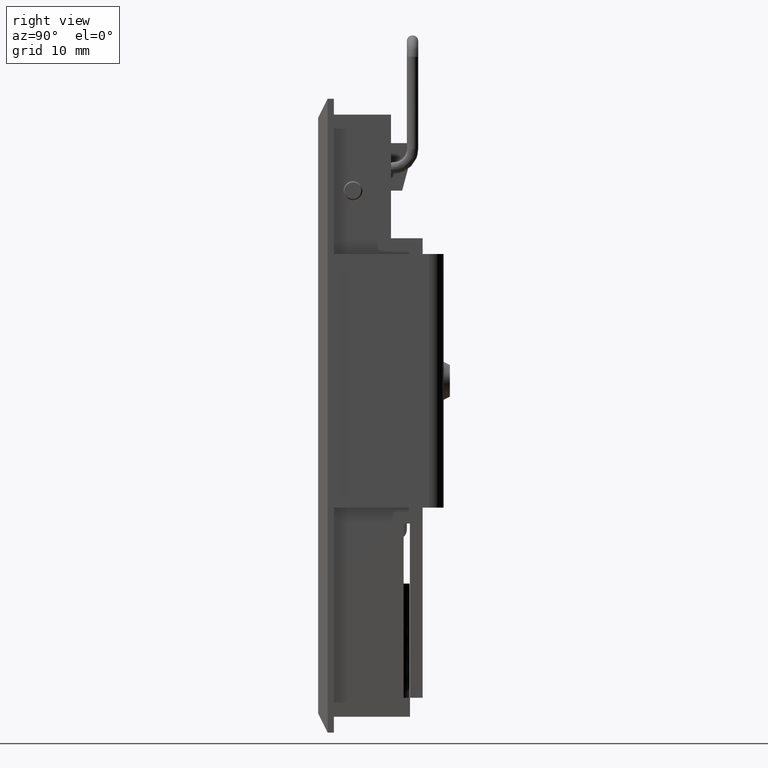
[diagram: clean part render]
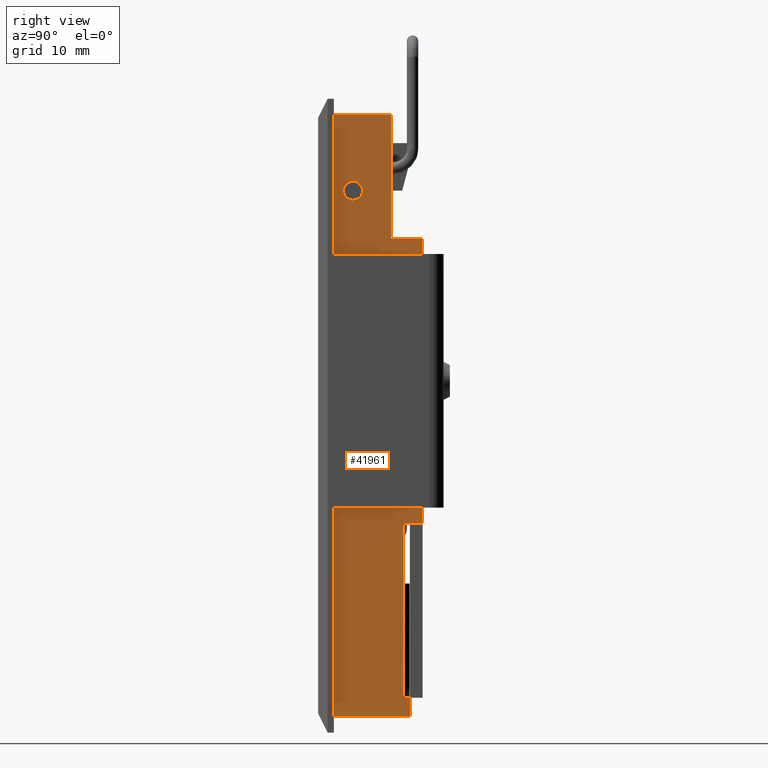
[diagram: same view with one face highlighted and labeled with its STEP entity id]
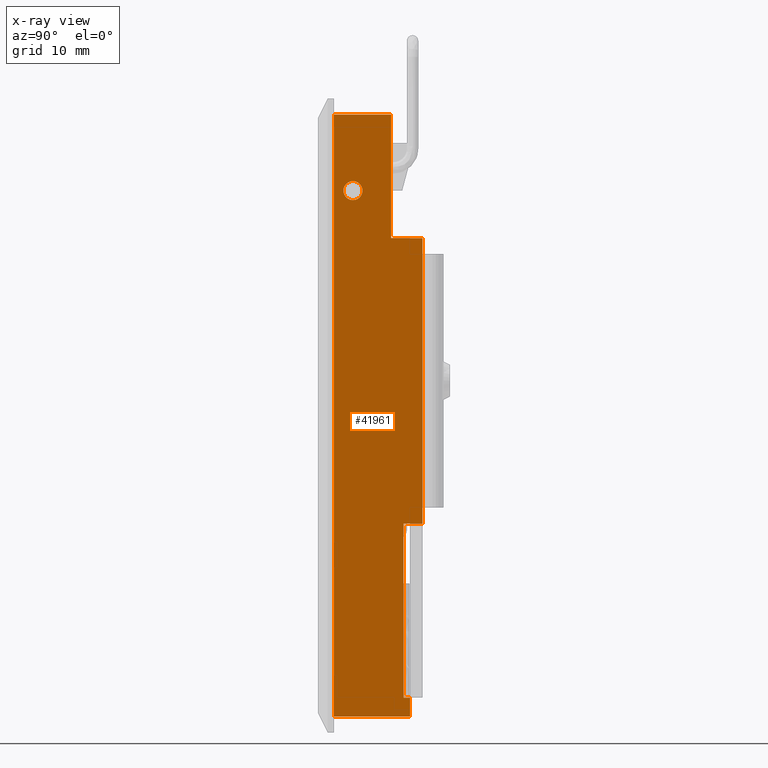
[diagram: x-ray of the same camera — body ghosted, the highlighted face saturated]
A machine part, right view. The second image highlights one B-rep face of the part: STEP entity #41961.
The next image is the same camera in x-ray: the body ghosted, the highlighted face saturated — about 0% of this face is hidden behind the body in this view.
In plain terms, the highlighted face is a freeform B-spline surface patch.
Its self-contained STEP definition (entity closure, byte-faithful):
#37002=CARTESIAN_POINT('',(5.499942884590057,-11.500000000000000,85.486920196032358));
#37003=VERTEX_POINT('',#37002);
#37009=CARTESIAN_POINT('',(4.000000000000085,-11.500000000000000,87.000010000000003));
#37010=VERTEX_POINT('',#37009);
#37011=CARTESIAN_POINT('',(5.499942884590057,-11.500000000000002,85.486920196032358));
#37012=CARTESIAN_POINT('',(5.500000000000084,-11.499999999999996,85.493464973048830));
#37013=CARTESIAN_POINT('',(5.500000000000084,-11.500000000000000,85.500010000000003));
#37014=CARTESIAN_POINT('',(5.500000000000084,-11.500000000000000,87.000009999999989));
#37015=CARTESIAN_POINT('',(4.000000000000085,-11.500000000000000,87.000010000000003));
#37023=(BOUNDED_CURVE()B_SPLINE_CURVE(2,(#37011,#37012,#37013,#37014,#37015),.UNSPECIFIED.,.F.,.U.)B_SPLINE_CURVE_WITH_KNOTS((3,2,3),(0.248460105495890,0.250000000000000,0.500000000000000),.UNSPECIFIED.)CURVE()GEOMETRIC_REPRESENTATION_ITEM()RATIONAL_B_SPLINE_CURVE((0.996414027709009,0.998195901368233,1.0,0.707106781186548,1.0))REPRESENTATION_ITEM(''));
#37024=EDGE_CURVE('',#37003,#37010,#37023,.T.);
#37026=CARTESIAN_POINT('',(2.511600679265153,-11.500000000000000,85.686202003146732));
#37027=VERTEX_POINT('',#37026);
#37028=CARTESIAN_POINT('',(4.000000000000085,-11.500000000000000,87.000010000000003));
#37029=CARTESIAN_POINT('',(2.675952099823116,-11.500000000000000,87.000010000000003));
#37030=CARTESIAN_POINT('',(2.511600679265153,-11.500000000000004,85.686202003146732));
#37038=(BOUNDED_CURVE()B_SPLINE_CURVE(2,(#37028,#37029,#37030),.UNSPECIFIED.,.F.,.U.)B_SPLINE_CURVE_WITH_KNOTS((3,3),(0.500000000000000,0.728526071023185),.UNSPECIFIED.)CURVE()GEOMETRIC_REPRESENTATION_ITEM()RATIONAL_B_SPLINE_CURVE((1.0,0.732265053900911,0.954005430262854))REPRESENTATION_ITEM(''));
#37039=EDGE_CURVE('',#37010,#37027,#37038,.T.);
#37089=CARTESIAN_POINT('',(4.000000000000085,-11.500000000000000,84.000010000000003));
#37090=VERTEX_POINT('',#37089);
#37091=CARTESIAN_POINT('',(2.511600679265153,-11.500000000000002,85.686202003146732));
#37092=CARTESIAN_POINT('',(2.500000000000085,-11.499999999999995,85.593467391327536));
#37093=CARTESIAN_POINT('',(2.500000000000085,-11.500000000000000,85.500010000000003));
#37094=CARTESIAN_POINT('',(2.500000000000085,-11.500000000000000,84.000010000000003));
#37095=CARTESIAN_POINT('',(4.000000000000085,-11.500000000000000,84.000010000000003));
#37103=(BOUNDED_CURVE()B_SPLINE_CURVE(2,(#37091,#37092,#37093,#37094,#37095),.UNSPECIFIED.,.F.,.U.)B_SPLINE_CURVE_WITH_KNOTS((3,2,3),(0.728526071023184,0.750000000000000,1.0),.UNSPECIFIED.)CURVE()GEOMETRIC_REPRESENTATION_ITEM()RATIONAL_B_SPLINE_CURVE((0.954005430262853,0.974841727285636,1.0,0.707106781186548,1.0))REPRESENTATION_ITEM(''));
#37104=EDGE_CURVE('',#37027,#37090,#37103,.T.);
#37106=CARTESIAN_POINT('',(4.000000000000085,-11.500000000000000,84.000010000000003));
#37107=CARTESIAN_POINT('',(5.486966814464794,-11.500000000000000,84.000010000000017));
#37108=CARTESIAN_POINT('',(5.499942884590057,-11.500000000000002,85.486920196032358));
#37116=(BOUNDED_CURVE()B_SPLINE_CURVE(2,(#37106,#37107,#37108),.UNSPECIFIED.,.F.,.U.)B_SPLINE_CURVE_WITH_KNOTS((3,3),(0.0,0.248460105495890),.UNSPECIFIED.)CURVE()GEOMETRIC_REPRESENTATION_ITEM()RATIONAL_B_SPLINE_CURVE((1.0,0.708910879818315,0.996414027709009))REPRESENTATION_ITEM(''));
#37117=EDGE_CURVE('',#37090,#37003,#37116,.T.);
#40059=CARTESIAN_POINT('',(12.990000000000000,-11.500000000000000,33.0));
#40060=VERTEX_POINT('',#40059);
#40061=CARTESIAN_POINT('',(12.990000000000000,-11.500000000000000,5.500000000000000));
#40062=VERTEX_POINT('',#40061);
#40063=CARTESIAN_POINT('',(12.990000000000000,-11.500000000000000,33.0));
#40064=CARTESIAN_POINT('',(12.990000000000000,-11.500000000000000,5.500000000000000));
#40065=QUASI_UNIFORM_CURVE('',1,(#40063,#40064),.UNSPECIFIED.,.F.,.U.);
#40066=EDGE_CURVE('',#40060,#40062,#40065,.T.);
#40132=CARTESIAN_POINT('',(12.0,-11.500000000000000,33.0));
#40133=VERTEX_POINT('',#40132);
#40139=CARTESIAN_POINT('',(12.0,-11.500000000000000,5.500000000000000));
#40140=VERTEX_POINT('',#40139);
#40141=CARTESIAN_POINT('',(12.0,-11.500000000000000,5.500000000000000));
#40142=CARTESIAN_POINT('',(12.0,-11.500000000000000,33.0));
#40143=QUASI_UNIFORM_CURVE('',1,(#40141,#40142),.UNSPECIFIED.,.F.,.U.);
#40144=EDGE_CURVE('',#40140,#40133,#40143,.T.);
#40237=CARTESIAN_POINT('',(12.0,-11.500000000000000,33.0));
#40238=CARTESIAN_POINT('',(12.990000000000000,-11.500000000000000,33.0));
#40239=QUASI_UNIFORM_CURVE('',1,(#40237,#40238),.UNSPECIFIED.,.F.,.U.);
#40240=EDGE_CURVE('',#40133,#40060,#40239,.T.);
#40443=CARTESIAN_POINT('',(15.0,-11.500000000000000,33.0));
#40444=VERTEX_POINT('',#40443);
#40445=CARTESIAN_POINT('',(13.0,-11.500000000000000,33.0));
#40446=VERTEX_POINT('',#40445);
#40447=CARTESIAN_POINT('',(15.0,-11.500000000000000,33.0));
#40448=CARTESIAN_POINT('',(13.0,-11.500000000000000,33.0));
#40449=QUASI_UNIFORM_CURVE('',1,(#40447,#40448),.UNSPECIFIED.,.F.,.U.);
#40450=EDGE_CURVE('',#40444,#40446,#40449,.T.);
#41232=CARTESIAN_POINT('',(10.0,-11.500000000000000,78.000009999999989));
#41233=VERTEX_POINT('',#41232);
#41239=CARTESIAN_POINT('',(15.0,-11.500000000000000,78.000009999999989));
#41240=VERTEX_POINT('',#41239);
#41241=CARTESIAN_POINT('',(10.0,-11.500000000000000,78.000009999999989));
#41242=CARTESIAN_POINT('',(15.0,-11.500000000000000,78.000009999999989));
#41243=QUASI_UNIFORM_CURVE('',1,(#41241,#41242),.UNSPECIFIED.,.F.,.U.);
#41244=EDGE_CURVE('',#41233,#41240,#41243,.T.);
#41287=CARTESIAN_POINT('',(1.0,-11.500000000000000,97.500000000000000));
#41288=VERTEX_POINT('',#41287);
#41289=CARTESIAN_POINT('',(10.0,-11.500000000000000,97.500000000000000));
#41290=VERTEX_POINT('',#41289);
#41291=CARTESIAN_POINT('',(1.0,-11.500000000000000,97.500000000000000));
#41292=CARTESIAN_POINT('',(10.0,-11.500000000000000,97.500000000000000));
#41293=QUASI_UNIFORM_CURVE('',1,(#41291,#41292),.UNSPECIFIED.,.F.,.U.);
#41294=EDGE_CURVE('',#41288,#41290,#41293,.T.);
#41323=CARTESIAN_POINT('',(13.0,-11.500000000000000,2.500000000000000));
#41324=VERTEX_POINT('',#41323);
#41325=CARTESIAN_POINT('',(1.0,-11.500000000000000,2.500000000000000));
#41326=VERTEX_POINT('',#41325);
#41327=CARTESIAN_POINT('',(13.0,-11.500000000000000,2.500000000000000));
#41328=CARTESIAN_POINT('',(1.0,-11.500000000000000,2.500000000000000));
#41329=QUASI_UNIFORM_CURVE('',1,(#41327,#41328),.UNSPECIFIED.,.F.,.U.);
#41330=EDGE_CURVE('',#41324,#41326,#41329,.T.);
#41481=CARTESIAN_POINT('',(1.0,-11.500000000000000,2.500000000000000));
#41482=CARTESIAN_POINT('',(1.0,-11.500000000000000,97.500000000000000));
#41483=QUASI_UNIFORM_CURVE('',1,(#41481,#41482),.UNSPECIFIED.,.F.,.U.);
#41484=EDGE_CURVE('',#41326,#41288,#41483,.T.);
#41798=CARTESIAN_POINT('',(10.0,-11.500000000000000,97.500000000000000));
#41799=CARTESIAN_POINT('',(10.0,-11.500000000000000,78.000009999999989));
#41800=QUASI_UNIFORM_CURVE('',1,(#41798,#41799),.UNSPECIFIED.,.F.,.U.);
#41801=EDGE_CURVE('',#41290,#41233,#41800,.T.);
#41825=CARTESIAN_POINT('',(12.990000000000000,-11.500000000000000,5.500000000000000));
#41826=CARTESIAN_POINT('',(12.0,-11.500000000000000,5.500000000000000));
#41827=QUASI_UNIFORM_CURVE('',1,(#41825,#41826),.UNSPECIFIED.,.F.,.U.);
#41828=EDGE_CURVE('',#40062,#40140,#41827,.T.);
#41863=CARTESIAN_POINT('',(13.0,-11.500000000000000,33.0));
#41864=CARTESIAN_POINT('',(13.0,-11.500000000000000,2.500000000000000));
#41865=QUASI_UNIFORM_CURVE('',1,(#41863,#41864),.UNSPECIFIED.,.F.,.U.);
#41866=EDGE_CURVE('',#40446,#41324,#41865,.T.);
#41877=CARTESIAN_POINT('',(15.0,-11.500000000000000,78.000009999999989));
#41878=CARTESIAN_POINT('',(15.0,-11.500000000000000,33.0));
#41879=QUASI_UNIFORM_CURVE('',1,(#41877,#41878),.UNSPECIFIED.,.F.,.U.);
#41880=EDGE_CURVE('',#41240,#40444,#41879,.T.);
#41934=CARTESIAN_POINT('',(0.300700027134716,-11.500000000000000,-2.245249815871569));
#41935=CARTESIAN_POINT('',(15.699300348374541,-11.500000000000000,-2.245249815871569));
#41936=CARTESIAN_POINT('',(0.300700027134716,-11.500000000000000,102.245252363970100));
#41937=CARTESIAN_POINT('',(15.699300348374541,-11.500000000000000,102.245252363970100));
#41938=B_SPLINE_SURFACE_WITH_KNOTS('',1,1,((#41934,#41936),(#41935,#41937)),.UNSPECIFIED.,.F.,.F.,.U.,(2,2),(2,2),(0.0,15.398600321239829),(0.0,104.490502179841700),.UNSPECIFIED.);
#41939=ORIENTED_EDGE('',*,*,#40450,.F.);
#41940=ORIENTED_EDGE('',*,*,#41880,.F.);
#41941=ORIENTED_EDGE('',*,*,#41244,.F.);
#41942=ORIENTED_EDGE('',*,*,#41801,.F.);
#41943=ORIENTED_EDGE('',*,*,#41294,.F.);
#41944=ORIENTED_EDGE('',*,*,#41484,.F.);
#41945=ORIENTED_EDGE('',*,*,#41330,.F.);
#41946=ORIENTED_EDGE('',*,*,#41866,.F.);
#41947=EDGE_LOOP('',(#41939,#41940,#41941,#41942,#41943,#41944,#41945,#41946));
#41948=FACE_OUTER_BOUND('',#41947,.T.);
#41949=ORIENTED_EDGE('',*,*,#40240,.T.);
#41950=ORIENTED_EDGE('',*,*,#40066,.T.);
#41951=ORIENTED_EDGE('',*,*,#41828,.T.);
#41952=ORIENTED_EDGE('',*,*,#40144,.T.);
#41953=EDGE_LOOP('',(#41949,#41950,#41951,#41952));
#41954=FACE_BOUND('',#41953,.T.);
#41955=ORIENTED_EDGE('',*,*,#37117,.F.);
#41956=ORIENTED_EDGE('',*,*,#37104,.F.);
#41957=ORIENTED_EDGE('',*,*,#37039,.F.);
#41958=ORIENTED_EDGE('',*,*,#37024,.F.);
#41959=EDGE_LOOP('',(#41955,#41956,#41957,#41958));
#41960=FACE_BOUND('',#41959,.T.);
#41961=ADVANCED_FACE('',(#41948,#41954,#41960),#41938,.T.);